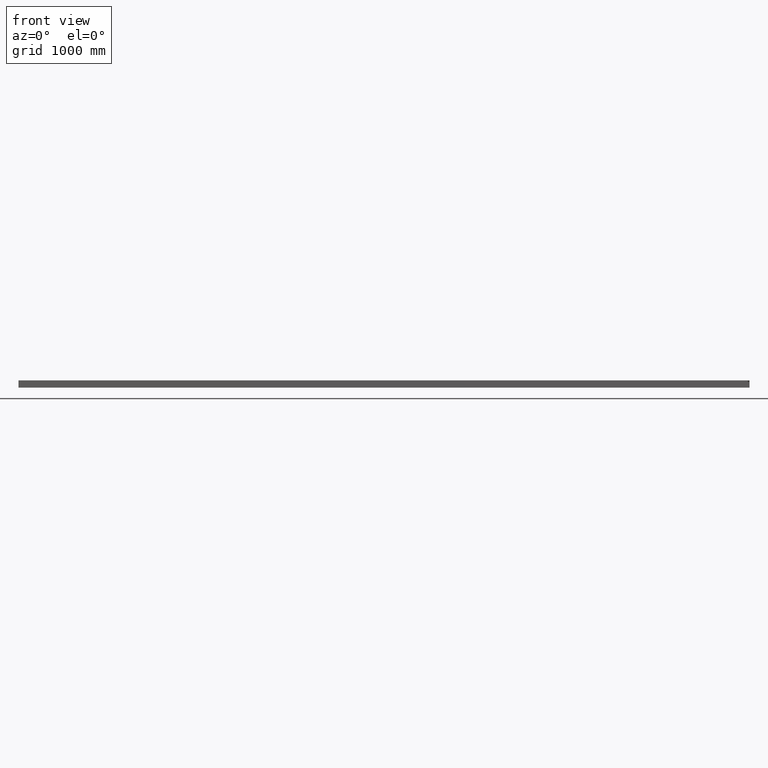
[diagram: clean part render]
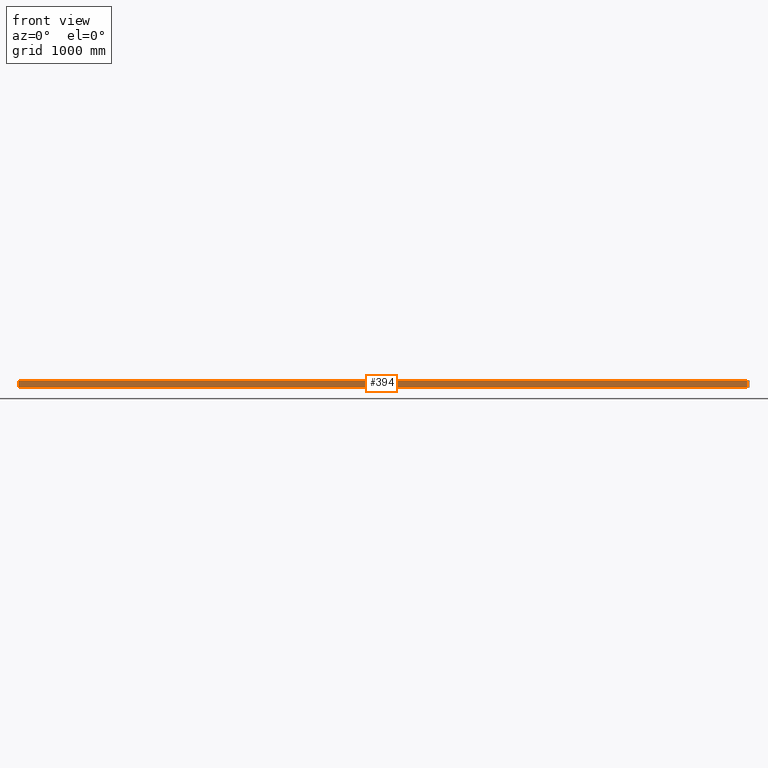
[diagram: same view with one face highlighted and labeled with its STEP entity id]
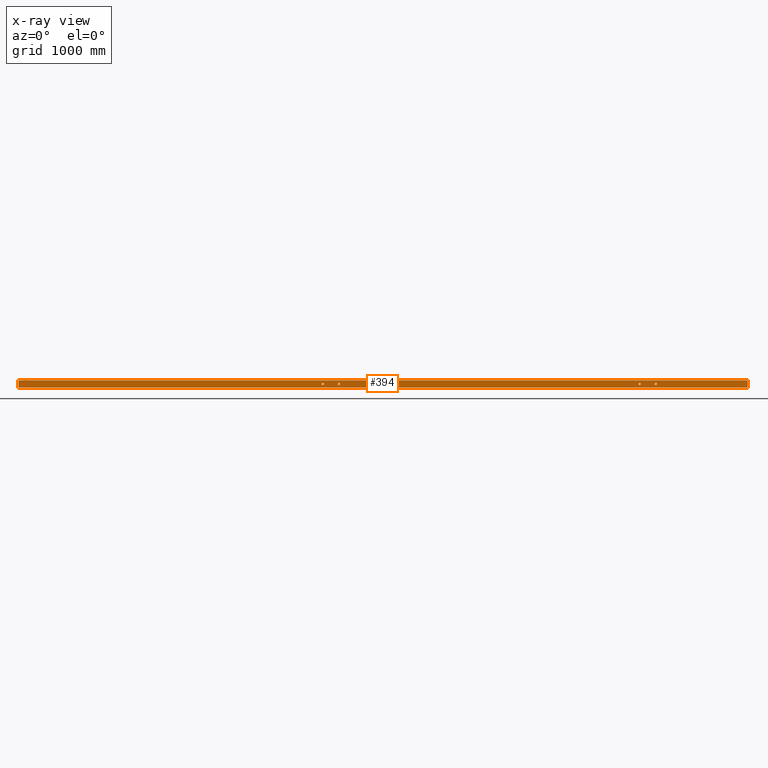
[diagram: x-ray of the same camera — body ghosted, the highlighted face saturated]
A machine part, front view. The second image highlights one B-rep face of the part: STEP entity #394.
The next image is the same camera in x-ray: the body ghosted, the highlighted face saturated — about 0% of this face is hidden behind the body in this view.
In plain terms, the highlighted planar face has unit normal (0, -1, 0).
Its self-contained STEP definition (entity closure, byte-faithful):
#1 = VECTOR ( 'NONE', #602, 1000.000000000000000 ) ;
#6 = ORIENTED_EDGE ( 'NONE', *, *, #145, .T. ) ;
#10 = DIRECTION ( 'NONE',  ( -0.000000000000000000, -1.000000000000000000, -0.000000000000000000 ) ) ;
#11 = VERTEX_POINT ( 'NONE', #220 ) ;
#13 = FACE_BOUND ( 'NONE', #642, .T. ) ;
#21 = CARTESIAN_POINT ( 'NONE',  ( -474.0000000000000568, -115.0000000000001563, -23.79999999998324256 ) ) ;
#28 = VERTEX_POINT ( 'NONE', #496 ) ;
#34 = DIRECTION ( 'NONE',  ( -0.000000000000000000, -1.000000000000000000, -0.000000000000000000 ) ) ;
#35 = ORIENTED_EDGE ( 'NONE', *, *, #756, .F. ) ;
#47 = CIRCLE ( 'NONE', #153, 12.00000000000001421 ) ;
#49 = ORIENTED_EDGE ( 'NONE', *, *, #288, .T. ) ;
#52 = CARTESIAN_POINT ( 'NONE',  ( 2686.000000000000000, -114.9999999999991900, -35.79999999999891713 ) ) ;
#63 = DIRECTION ( 'NONE',  ( -0.000000000000000000, -0.000000000000000000, 1.000000000000000000 ) ) ;
#75 = LINE ( 'NONE', #524, #450 ) ;
#78 = CARTESIAN_POINT ( 'NONE',  ( -3841.000000000000000, -115.0000000000008100, 13.70000000000121609 ) ) ;
#82 = CARTESIAN_POINT ( 'NONE',  ( -644.0000000000001137, -115.0000000000001990, -11.80000000001430926 ) ) ;
#85 = ORIENTED_EDGE ( 'NONE', *, *, #452, .F. ) ;
#97 = VERTEX_POINT ( 'NONE', #487 ) ;
#108 = VERTEX_POINT ( 'NONE', #843 ) ;
#124 = LINE ( 'NONE', #511, #195 ) ;
#136 = CIRCLE ( 'NONE', #855, 12.00000000000000711 ) ;
#137 = AXIS2_PLACEMENT_3D ( 'NONE', #144, #214, #761 ) ;
#141 = VERTEX_POINT ( 'NONE', #52 ) ;
#144 = CARTESIAN_POINT ( 'NONE',  ( 2856.000000000000000, -114.9999999999991331, -23.79999999999893134 ) ) ;
#145 = EDGE_CURVE ( 'NONE', #166, #248, #124, .T. ) ;
#151 = AXIS2_PLACEMENT_3D ( 'NONE', #78, #356, #492 ) ;
#153 = AXIS2_PLACEMENT_3D ( 'NONE', #719, #729, #378 ) ;
#166 = VERTEX_POINT ( 'NONE', #328 ) ;
#177 = CARTESIAN_POINT ( 'NONE',  ( -3841.000000000000000, -115.0000000000015632, -61.29999999999878213 ) ) ;
#195 = VECTOR ( 'NONE', #852, 1000.000000000000000 ) ;
#202 = EDGE_CURVE ( 'NONE', #465, #837, #282, .T. ) ;
#214 = DIRECTION ( 'NONE',  ( -0.000000000000000000, -1.000000000000000000, -0.000000000000000000 ) ) ;
#220 = CARTESIAN_POINT ( 'NONE',  ( 2856.000000000000000, -114.9999999999991331, -35.79999999999894555 ) ) ;
#230 = EDGE_CURVE ( 'NONE', #166, #321, #320, .T. ) ;
#236 = FACE_BOUND ( 'NONE', #784, .T. ) ;
#248 = VERTEX_POINT ( 'NONE', #177 ) ;
#269 = DIRECTION ( 'NONE',  ( -0.000000000000000000, -1.000000000000000000, -0.000000000000000000 ) ) ;
#282 = CIRCLE ( 'NONE', #800, 12.00000000000001421 ) ;
#288 = EDGE_CURVE ( 'NONE', #670, #321, #75, .T. ) ;
#301 = FACE_BOUND ( 'NONE', #817, .T. ) ;
#308 = FACE_BOUND ( 'NONE', #585, .T. ) ;
#314 = EDGE_CURVE ( 'NONE', #28, #141, #814, .T. ) ;
#320 = LINE ( 'NONE', #574, #751 ) ;
#321 = VERTEX_POINT ( 'NONE', #737 ) ;
#322 = EDGE_CURVE ( 'NONE', #504, #97, #136, .T. ) ;
#328 = CARTESIAN_POINT ( 'NONE',  ( -3841.000000000000000, -115.0000000000008100, 13.70000000000000639 ) ) ;
#329 = ORIENTED_EDGE ( 'NONE', *, *, #230, .F. ) ;
#332 = EDGE_CURVE ( 'NONE', #248, #670, #405, .T. ) ;
#342 = CARTESIAN_POINT ( 'NONE',  ( -3841.000000000000000, -115.0000000000015632, -61.29999999999878213 ) ) ;
#356 = DIRECTION ( 'NONE',  ( 3.061616997868382648E-16, -1.000000000000000000, 9.992007221626408864E-15 ) ) ;
#361 = CIRCLE ( 'NONE', #137, 12.00000000000001421 ) ;
#362 = CARTESIAN_POINT ( 'NONE',  ( 2686.000000000000000, -114.9999999999991900, -23.79999999999891003 ) ) ;
#363 = ORIENTED_EDGE ( 'NONE', *, *, #432, .F. ) ;
#365 = CARTESIAN_POINT ( 'NONE',  ( 2856.000000000000000, -114.9999999999991331, -23.79999999999893134 ) ) ;
#378 = DIRECTION ( 'NONE',  ( 0.000000000000000000, 0.000000000000000000, -1.000000000000000000 ) ) ;
#392 = CARTESIAN_POINT ( 'NONE',  ( -644.0000000000001137, -115.0000000000001990, -23.80000000001432170 ) ) ;
#394 = ADVANCED_FACE ( 'NONE', ( #703, #301, #13, #236, #308 ), #417, .T. ) ;
#405 = LINE ( 'NONE', #342, #1 ) ;
#416 = ORIENTED_EDGE ( 'NONE', *, *, #332, .T. ) ;
#417 = PLANE ( 'NONE',  #151 ) ;
#427 = DIRECTION ( 'NONE',  ( 0.000000000000000000, 0.000000000000000000, -1.000000000000000000 ) ) ;
#432 = EDGE_CURVE ( 'NONE', #108, #11, #474, .T. ) ;
#450 = VECTOR ( 'NONE', #63, 1000.000000000000000 ) ;
#452 = EDGE_CURVE ( 'NONE', #141, #28, #654, .T. ) ;
#465 = VERTEX_POINT ( 'NONE', #82 ) ;
#474 = CIRCLE ( 'NONE', #603, 12.00000000000001421 ) ;
#487 = CARTESIAN_POINT ( 'NONE',  ( -474.0000000000000568, -115.0000000000001563, -35.79999999998324967 ) ) ;
#488 = DIRECTION ( 'NONE',  ( -0.000000000000000000, -1.000000000000000000, -0.000000000000000000 ) ) ;
#492 = DIRECTION ( 'NONE',  ( 0.000000000000000000, -9.992007221626408864E-15, -1.000000000000000000 ) ) ;
#496 = CARTESIAN_POINT ( 'NONE',  ( 2686.000000000000000, -114.9999999999991900, -11.79999999999889759 ) ) ;
#502 = CIRCLE ( 'NONE', #828, 12.00000000000000711 ) ;
#504 = VERTEX_POINT ( 'NONE', #554 ) ;
#511 = CARTESIAN_POINT ( 'NONE',  ( -3841.000000000000000, -115.0000000000008100, 13.70000000000121609 ) ) ;
#524 = CARTESIAN_POINT ( 'NONE',  ( 3820.877607389038985, -115.0000000000008100, -61.30000000000121219 ) ) ;
#528 = AXIS2_PLACEMENT_3D ( 'NONE', #595, #877, #530 ) ;
#530 = DIRECTION ( 'NONE',  ( 0.000000000000000000, 0.000000000000000000, -1.000000000000000000 ) ) ;
#544 = ORIENTED_EDGE ( 'NONE', *, *, #202, .F. ) ;
#551 = ORIENTED_EDGE ( 'NONE', *, *, #322, .F. ) ;
#554 = CARTESIAN_POINT ( 'NONE',  ( -474.0000000000000568, -115.0000000000001563, -11.79999999998323013 ) ) ;
#567 = DIRECTION ( 'NONE',  ( 0.000000000000000000, 0.000000000000000000, -1.000000000000000000 ) ) ;
#569 = CARTESIAN_POINT ( 'NONE',  ( -644.0000000000001137, -115.0000000000001990, -35.80000000001433591 ) ) ;
#574 = CARTESIAN_POINT ( 'NONE',  ( -3841.000000000000000, -115.0000000000008100, 13.70000000000121609 ) ) ;
#585 = EDGE_LOOP ( 'NONE', ( #35, #363 ) ) ;
#595 = CARTESIAN_POINT ( 'NONE',  ( 2686.000000000000000, -114.9999999999991900, -23.79999999999891003 ) ) ;
#599 = DIRECTION ( 'NONE',  ( 0.000000000000000000, 0.000000000000000000, -1.000000000000000000 ) ) ;
#602 = DIRECTION ( 'NONE',  ( 1.000000000000000000, 3.061616997868382648E-16, -0.000000000000000000 ) ) ;
#603 = AXIS2_PLACEMENT_3D ( 'NONE', #365, #34, #614 ) ;
#614 = DIRECTION ( 'NONE',  ( 0.000000000000000000, 0.000000000000000000, -1.000000000000000000 ) ) ;
#631 = EDGE_LOOP ( 'NONE', ( #49, #329, #6, #416 ) ) ;
#642 = EDGE_LOOP ( 'NONE', ( #838, #544 ) ) ;
#654 = CIRCLE ( 'NONE', #842, 12.00000000000000711 ) ;
#670 = VERTEX_POINT ( 'NONE', #726 ) ;
#674 = ORIENTED_EDGE ( 'NONE', *, *, #746, .F. ) ;
#703 = FACE_OUTER_BOUND ( 'NONE', #631, .T. ) ;
#716 = DIRECTION ( 'NONE',  ( -0.000000000000000000, -1.000000000000000000, -0.000000000000000000 ) ) ;
#719 = CARTESIAN_POINT ( 'NONE',  ( -644.0000000000001137, -115.0000000000001990, -23.80000000001432170 ) ) ;
#726 = CARTESIAN_POINT ( 'NONE',  ( 3820.877607389038985, -115.0000000000008100, -61.30000000000121219 ) ) ;
#729 = DIRECTION ( 'NONE',  ( -0.000000000000000000, -1.000000000000000000, -0.000000000000000000 ) ) ;
#735 = ORIENTED_EDGE ( 'NONE', *, *, #314, .F. ) ;
#737 = CARTESIAN_POINT ( 'NONE',  ( 3820.877607389038985, -115.0000000000008100, 13.70000000000000639 ) ) ;
#746 = EDGE_CURVE ( 'NONE', #97, #504, #502, .T. ) ;
#751 = VECTOR ( 'NONE', #868, 1000.000000000000000 ) ;
#752 = CARTESIAN_POINT ( 'NONE',  ( -474.0000000000000568, -115.0000000000001563, -23.79999999998324256 ) ) ;
#756 = EDGE_CURVE ( 'NONE', #11, #108, #361, .T. ) ;
#761 = DIRECTION ( 'NONE',  ( 0.000000000000000000, 0.000000000000000000, -1.000000000000000000 ) ) ;
#784 = EDGE_LOOP ( 'NONE', ( #85, #735 ) ) ;
#800 = AXIS2_PLACEMENT_3D ( 'NONE', #392, #716, #567 ) ;
#814 = CIRCLE ( 'NONE', #528, 12.00000000000000711 ) ;
#817 = EDGE_LOOP ( 'NONE', ( #674, #551 ) ) ;
#828 = AXIS2_PLACEMENT_3D ( 'NONE', #21, #10, #830 ) ;
#830 = DIRECTION ( 'NONE',  ( 0.000000000000000000, 0.000000000000000000, -1.000000000000000000 ) ) ;
#837 = VERTEX_POINT ( 'NONE', #569 ) ;
#838 = ORIENTED_EDGE ( 'NONE', *, *, #840, .F. ) ;
#840 = EDGE_CURVE ( 'NONE', #837, #465, #47, .T. ) ;
#842 = AXIS2_PLACEMENT_3D ( 'NONE', #362, #488, #427 ) ;
#843 = CARTESIAN_POINT ( 'NONE',  ( 2856.000000000000000, -114.9999999999991331, -11.79999999999891891 ) ) ;
#852 = DIRECTION ( 'NONE',  ( 0.000000000000000000, -9.992007221626408864E-15, -1.000000000000000000 ) ) ;
#855 = AXIS2_PLACEMENT_3D ( 'NONE', #752, #269, #599 ) ;
#868 = DIRECTION ( 'NONE',  ( 1.000000000000000000, 3.061616997868382648E-16, -0.000000000000000000 ) ) ;
#877 = DIRECTION ( 'NONE',  ( -0.000000000000000000, -1.000000000000000000, -0.000000000000000000 ) ) ;